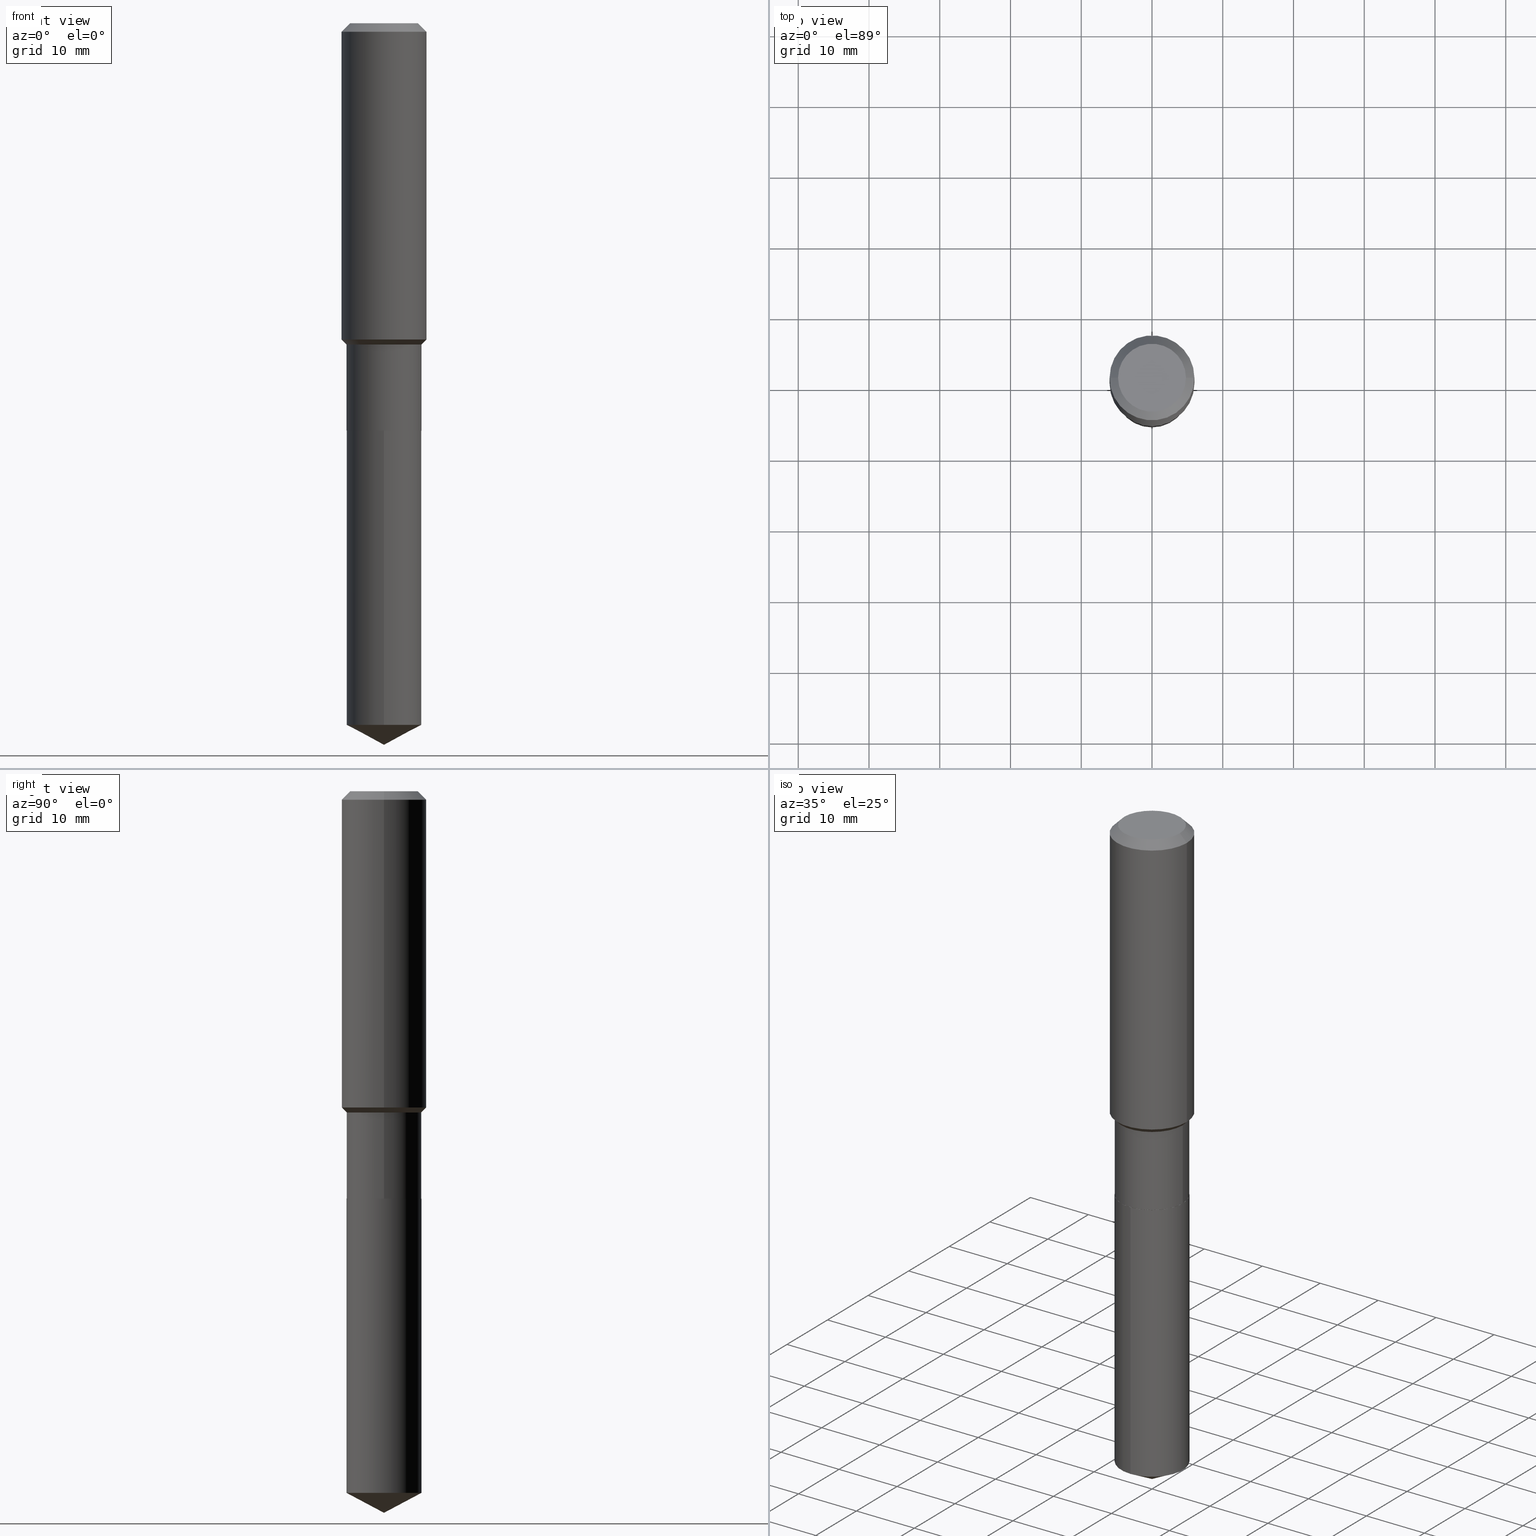
[diagram: canonical four-view strip — front | top / right | iso, engineering-drawing reading convention]
A machine part, canonical four-view strip (front | top / right | iso — engineering-drawing reading convention). The complete STEP part file that produces these views, byte-faithful:
ISO-10303-21;
HEADER;
FILE_DESCRIPTION (( 'STEP AP203' ),
    '1' );
FILE_NAME ('67676.STEP',
    '2024-04-25T09:06:03',
    ( '' ),
    ( '' ),
    'SwSTEP 2.0',
    'SolidWorks 2023',
    '' );
FILE_SCHEMA (( 'CONFIG_CONTROL_DESIGN' ));
ENDSEC;

DATA;
#1 = ORIENTED_EDGE ( 'NONE', *, *, #234, .T. ) ;
#2 = CARTESIAN_POINT ( 'NONE',  ( 0.000000000000000000, 0.000000000000000000, 0.000000000000000000 ) ) ;
#3 = DIRECTION ( 'NONE',  ( -2.445557312762825929E-29, 3.491354592386412889E-15, 1.000000000000000000 ) ) ;
#4 = CIRCLE ( 'NONE', #62, 0.1889600000000000168 ) ;
#5 = VECTOR ( 'NONE', #460, 39.37007874015748143 ) ;
#6 = DIRECTION ( 'NONE',  ( 1.000000000000000000, -6.982962677686266711E-15, 4.876176775795935793E-29 ) ) ;
#7 = DIRECTION ( 'NONE',  ( 0.000000000000000000, 0.000000000000000000, 1.000000000000000000 ) ) ;
#8 = FACE_OUTER_BOUND ( 'NONE', #79, .T. ) ;
#9 = ORIENTED_EDGE ( 'NONE', *, *, #287, .F. ) ;
#10 = ORIENTED_EDGE ( 'NONE', *, *, #470, .F. ) ;
#11 = EDGE_LOOP ( 'NONE', ( #244, #84, #227, #386 ) ) ;
#12 = EDGE_LOOP ( 'NONE', ( #419, #446, #306, #125 ) ) ;
#13 = DATE_AND_TIME ( #161, #199 ) ;
#14 = AXIS2_PLACEMENT_3D ( 'NONE', #176, #102, #420 ) ;
#15 = APPROVAL_PERSON_ORGANIZATION ( #450, #402, #49 ) ;
#16 = PRODUCT ( '67676', '67676', '', ( #336 ) ) ;
#17 = ADVANCED_FACE ( 'NONE', ( #479 ), #23, .T. ) ;
#18 = DIRECTION ( 'NONE',  ( -2.445557312762825929E-29, 3.491354592386412889E-15, 1.000000000000000000 ) ) ;
#19 = DIRECTION ( 'NONE',  ( -2.445557312762825929E-29, 3.491354592386412889E-15, 1.000000000000000000 ) ) ;
#20 = CIRCLE ( 'NONE', #231, 0.2086500000000000021 ) ;
#21 = CC_DESIGN_DATE_AND_TIME_ASSIGNMENT ( #142, #289, ( #406 ) ) ;
#22 = CARTESIAN_POINT ( 'NONE',  ( 9.549110806634494996E-29, -1.363318507336581100E-14, -3.904758827083833150 ) ) ;
#23 = CYLINDRICAL_SURFACE ( 'NONE', #121, 0.2086500000000000021 ) ;
#24 = LINE ( 'NONE', #320, #242 ) ;
#25 = EDGE_CURVE ( 'NONE', #193, #421, #473, .T. ) ;
#26 = CONICAL_SURFACE ( 'NONE', #283, 0.2086499999999999466, 0.7853981633974513876 ) ;
#27 = AXIS2_PLACEMENT_3D ( 'NONE', #183, #7, #251 ) ;
#28 = EDGE_CURVE ( 'NONE', #53, #150, #155, .T. ) ;
#29 = ADVANCED_FACE ( 'NONE', ( #319 ), #26, .T. ) ;
#30 = DIRECTION ( 'NONE',  ( -2.445468806185136597E-29, 3.491481338843145583E-15, 1.000000000000000000 ) ) ;
#31 = EDGE_CURVE ( 'NONE', #193, #268, #166, .T. ) ;
#32 = PERSON_AND_ORGANIZATION_ROLE ( 'creator' ) ;
#33 = AXIS2_PLACEMENT_3D ( 'NONE', #297, #299, #56 ) ;
#34 = LINE ( 'NONE', #139, #279 ) ;
#35 = CARTESIAN_POINT ( 'NONE',  ( 5.545345064905416332E-29, -7.917283083960716952E-15, -2.267600000000000282 ) ) ;
#36 = DIRECTION ( 'NONE',  ( 1.000000000000000000, -6.982962677686263555E-15, 0.000000000000000000 ) ) ;
#37 = MANIFOLD_SOLID_BREP ( 'Body-Move/Copy2[1]', #81 ) ;
#38 = CARTESIAN_POINT ( 'NONE',  ( 5.545345064905416332E-29, -7.917283083960716952E-15, -2.267600000000000282 ) ) ;
#39 = CARTESIAN_POINT ( 'NONE',  ( 0.2086499999999999466, -7.698716352149130505E-15, -1.787699999999999845 ) ) ;
#40 = CONICAL_SURFACE ( 'NONE', #462, 0.2081500000000000017, 0.7853981633975507526 ) ;
#41 = ORIENTED_EDGE ( 'NONE', *, *, #486, .F. ) ;
#42 = EDGE_LOOP ( 'NONE', ( #185, #95, #44, #374 ) ) ;
#43 = PERSON_AND_ORGANIZATION ( #332, #188 ) ;
#44 = ORIENTED_EDGE ( 'NONE', *, *, #249, .F. ) ;
#45 = ORIENTED_EDGE ( 'NONE', *, *, #200, .F. ) ;
#46 = PERSON_AND_ORGANIZATION_ROLE ( 'design_supplier' ) ;
#47 = CARTESIAN_POINT ( 'NONE',  ( 5.545345064905416332E-29, -7.917283083960716952E-15, -2.267600000000000282 ) ) ;
#48 = EDGE_LOOP ( 'NONE', ( #391, #91, #265, #438 ) ) ;
#49 = APPROVAL_ROLE ( '' ) ;
#50 = APPLICATION_CONTEXT ( 'configuration controlled 3d designs of mechanical parts and assemblies' ) ;
#51 = ADVANCED_BREP_SHAPE_REPRESENTATION ( '67676', ( #37, #360, #27 ), #480 ) ;
#52 = CARTESIAN_POINT ( 'NONE',  ( 5.545345064905416332E-29, -7.917283083960716952E-15, -2.267600000000000282 ) ) ;
#53 = VERTEX_POINT ( 'NONE', #278 ) ;
#54 = VECTOR ( 'NONE', #256, 39.37007874015748854 ) ;
#55 = ORIENTED_EDGE ( 'NONE', *, *, #440, .T. ) ;
#56 = DIRECTION ( 'NONE',  ( -1.000000000000000000, 6.982962677686266711E-15, 0.000000000000000000 ) ) ;
#57 = CARTESIAN_POINT ( 'NONE',  ( 5.545345064905416332E-29, -7.917283083960716952E-15, -2.267600000000000282 ) ) ;
#58 = CIRCLE ( 'NONE', #304, 0.1889600000000000168 ) ;
#59 = CONICAL_SURFACE ( 'NONE', #210, 74.04434902938353957, 1.082104136236486491 ) ;
#60 = EDGE_CURVE ( 'NONE', #65, #164, #97, .T. ) ;
#61 = EDGE_CURVE ( 'NONE', #268, #65, #181, .T. ) ;
#62 = AXIS2_PLACEMENT_3D ( 'NONE', #453, #138, #414 ) ;
#63 = CC_DESIGN_SECURITY_CLASSIFICATION ( #243, ( #273 ) ) ;
#64 = EDGE_CURVE ( 'NONE', #309, #65, #137, .T. ) ;
#65 = VERTEX_POINT ( 'NONE', #39 ) ;
#66 = DIRECTION ( 'NONE',  ( 1.000000000000000000, -6.982962677686266711E-15, 0.000000000000000000 ) ) ;
#67 = LENGTH_MEASURE_WITH_UNIT ( LENGTH_MEASURE( 0.02539999999999999897 ), #98 );
#68 = EDGE_CURVE ( 'NONE', #421, #193, #175, .T. ) ;
#69 = FACE_OUTER_BOUND ( 'NONE', #195, .T. ) ;
#70 = FACE_OUTER_BOUND ( 'NONE', #159, .T. ) ;
#71 = AXIS2_PLACEMENT_3D ( 'NONE', #115, #184, #189 ) ;
#72 = DIRECTION ( 'NONE',  ( -2.445557312762825929E-29, 3.491354592386412889E-15, 1.000000000000000000 ) ) ;
#73 = DIRECTION ( 'NONE',  ( -2.445468806185136597E-29, 3.491481338843145583E-15, 1.000000000000000000 ) ) ;
#74 = CARTESIAN_POINT ( 'NONE',  ( -1.456995162699183723E-15, -0.2086500000000079402, -2.267599999999999394 ) ) ;
#75 = ORIENTED_EDGE ( 'NONE', *, *, #25, .T. ) ;
#76 = DIRECTION ( 'NONE',  ( -2.445468806185136597E-29, 3.491481338843145583E-15, 1.000000000000000000 ) ) ;
#77 = CARTESIAN_POINT ( 'NONE',  ( 9.820223105830542316E-29, -1.402080745717669325E-14, -4.015699999999999825 ) ) ;
#78 = DIRECTION ( 'NONE',  ( -2.445468806185136597E-29, 3.491481338843145583E-15, 1.000000000000000000 ) ) ;
#79 = EDGE_LOOP ( 'NONE', ( #162, #466, #383, #343 ) ) ;
#80 = ORIENTED_EDGE ( 'NONE', *, *, #25, .F. ) ;
#81 = CLOSED_SHELL ( 'NONE', ( #17, #325, #465, #477, #132 ) ) ;
#82 = AXIS2_PLACEMENT_3D ( 'NONE', #2, #116, #6 ) ;
#83 = CC_DESIGN_APPROVAL ( #402, ( #273 ) ) ;
#84 = ORIENTED_EDGE ( 'NONE', *, *, #486, .T. ) ;
#85 = COORDINATED_UNIVERSAL_TIME_OFFSET ( 5, 0, .BEHIND. ) ;
#86 = APPLICATION_CONTEXT ( 'configuration controlled 3d designs of mechanical parts and assemblies' ) ;
#87 = DIRECTION ( 'NONE',  ( -2.445557312762825929E-29, 3.491354592386412889E-15, 1.000000000000000000 ) ) ;
#88 = ORIENTED_EDGE ( 'NONE', *, *, #106, .F. ) ;
#89 = ADVANCED_FACE ( 'NONE', ( #334 ), #140, .T. ) ;
#90 = ORIENTED_EDGE ( 'NONE', *, *, #312, .F. ) ;
#91 = ORIENTED_EDGE ( 'NONE', *, *, #68, .T. ) ;
#92 = EDGE_LOOP ( 'NONE', ( #313, #461 ) ) ;
#93 = VECTOR ( 'NONE', #113, 39.37007874015748143 ) ;
#94 = APPROVAL_PERSON_ORGANIZATION ( #43, #191, #410 ) ;
#95 = ORIENTED_EDGE ( 'NONE', *, *, #470, .T. ) ;
#96 = DIRECTION ( 'NONE',  ( 1.000000000000000000, -6.982962677686266711E-15, 0.000000000000000000 ) ) ;
#97 = LINE ( 'NONE', #439, #93 ) ;
#98 =( LENGTH_UNIT ( ) NAMED_UNIT ( * ) SI_UNIT ( $, .METRE. ) );
#99 = VECTOR ( 'NONE', #136, 39.37007874015748143 ) ;
#100 = CC_DESIGN_APPROVAL ( #191, ( #406 ) ) ;
#101 = ADVANCED_FACE ( 'NONE', ( #359 ), #250, .T. ) ;
#102 = DIRECTION ( 'NONE',  ( -2.445468806185136597E-29, 3.491481338843145583E-15, 1.000000000000000000 ) ) ;
#103 = VERTEX_POINT ( 'NONE', #416 ) ;
#104 = CIRCLE ( 'NONE', #157, 0.2361999999999999933 ) ;
#105 = CARTESIAN_POINT ( 'NONE',  ( -0.2361999999999999933, -1.476932286640498674E-15, -0.04724000000000028177 ) ) ;
#106 = EDGE_CURVE ( 'NONE', #309, #428, #24, .T. ) ;
#107 = LINE ( 'NONE', #74, #339 ) ;
#108 = CALENDAR_DATE ( 2024, 25, 4 ) ;
#109 = DIRECTION ( 'NONE',  ( 0.7071067811865453523, -7.319954787623248157E-15, -0.7071067811865496822 ) ) ;
#110 = DIRECTION ( 'NONE',  ( 1.000000000000000000, -6.982962677686267499E-15, 0.000000000000000000 ) ) ;
#111 = APPLICATION_PROTOCOL_DEFINITION ( 'international standard', 'config_control_design', 1994, #86 ) ;
#112 = CARTESIAN_POINT ( 'NONE',  ( 9.820628020622293086E-29, -1.402023263664611897E-14, -4.015699999999999825 ) ) ;
#113 = DIRECTION ( 'NONE',  ( 0.7071067811865496822, -2.468850131082279149E-15, 0.7071067811865453523 ) ) ;
#114 = AXIS2_PLACEMENT_3D ( 'NONE', #255, #376, #212 ) ;
#115 = CARTESIAN_POINT ( 'NONE',  ( 5.544122330502323530E-29, -7.915537343291296237E-15, -2.267100000000000115 ) ) ;
#116 = DIRECTION ( 'NONE',  ( -2.445468806185136597E-29, 3.491481338843145583E-15, 1.000000000000000000 ) ) ;
#117 = EDGE_CURVE ( 'NONE', #421, #128, #449, .T. ) ;
#118 = LINE ( 'NONE', #77, #411 ) ;
#119 = EDGE_LOOP ( 'NONE', ( #228, #322, #397 ) ) ;
#120 = DATE_AND_TIME ( #426, #122 ) ;
#121 = AXIS2_PLACEMENT_3D ( 'NONE', #482, #207, #205 ) ;
#122 = LOCAL_TIME ( 5, 6, 3.000000000000000000, #353 ) ;
#123 = ADVANCED_FACE ( 'NONE', ( #404 ), #356, .T. ) ;
#124 = EDGE_LOOP ( 'NONE', ( #154, #262, #394 ) ) ;
#125 = ORIENTED_EDGE ( 'NONE', *, *, #60, .F. ) ;
#126 = EDGE_LOOP ( 'NONE', ( #41, #381, #377, #390 ) ) ;
#127 = CARTESIAN_POINT ( 'NONE',  ( 0.1889600000000000168, -1.540873453589747738E-15, 3.855188123725863225E-18 ) ) ;
#128 = VERTEX_POINT ( 'NONE', #409 ) ;
#129 = DATE_TIME_ROLE ( 'classification_date' ) ;
#130 = DIRECTION ( 'NONE',  ( 1.000000000000000000, -6.982962677686265922E-15, 4.876176775795935793E-29 ) ) ;
#131 = CARTESIAN_POINT ( 'NONE',  ( -8.646136016369427519E-28, 1.234343851651521043E-13, 35.35437874015748605 ) ) ;
#132 = ADVANCED_FACE ( 'NONE', ( #70 ), #489, .F. ) ;
#133 = LOCAL_TIME ( 5, 6, 3.000000000000000000, #85 ) ;
#134 = DIRECTION ( 'NONE',  ( -2.445468806185136597E-29, 3.491481338843145583E-15, 1.000000000000000000 ) ) ;
#135 = PRODUCT_RELATED_PRODUCT_CATEGORY ( 'detail', '', ( #16 ) ) ;
#136 = DIRECTION ( 'NONE',  ( -2.445468806185136877E-29, 3.491481338843145188E-15, 1.000000000000000000 ) ) ;
#137 = CIRCLE ( 'NONE', #14, 0.2086499999999999466 ) ;
#138 = DIRECTION ( 'NONE',  ( -2.445468806185136597E-29, 3.491481338843145583E-15, 1.000000000000000000 ) ) ;
#139 = CARTESIAN_POINT ( 'NONE',  ( 0.2361999999999999933, -1.785387205520586782E-15, -0.04724000000000028177 ) ) ;
#140 = CYLINDRICAL_SURFACE ( 'NONE', #82, 0.2362000000000001043 ) ;
#141 = CARTESIAN_POINT ( 'NONE',  ( 5.545345064905416332E-29, -7.917283083960716952E-15, -2.267600000000000282 ) ) ;
#142 = DATE_AND_TIME ( #485, #463 ) ;
#143 = CARTESIAN_POINT ( 'NONE',  ( 1.482547418163544505E-15, 0.2086499999999864019, -3.904758827083833594 ) ) ;
#144 = DIRECTION ( 'NONE',  ( 2.438088387897960049E-29, -3.491481338843145188E-15, -1.000000000000000000 ) ) ;
#145 = APPLICATION_PROTOCOL_DEFINITION ( 'international standard', 'config_control_design', 1994, #50 ) ;
#146 = CYLINDRICAL_SURFACE ( 'NONE', #380, 0.2086499999999999744 ) ;
#147 = FACE_OUTER_BOUND ( 'NONE', #355, .T. ) ;
#148 = AXIS2_PLACEMENT_3D ( 'NONE', #293, #211, #177 ) ;
#149 = DIRECTION ( 'NONE',  ( -2.445468806185136597E-29, 3.491481338843145583E-15, 1.000000000000000000 ) ) ;
#150 = VERTEX_POINT ( 'NONE', #143 ) ;
#151 = DIRECTION ( 'NONE',  ( 1.000000000000000000, -6.982962677686267499E-15, 0.000000000000000000 ) ) ;
#152 = EDGE_CURVE ( 'NONE', #65, #309, #444, .T. ) ;
#153 = ORIENTED_EDGE ( 'NONE', *, *, #31, .F. ) ;
#154 = ORIENTED_EDGE ( 'NONE', *, *, #173, .F. ) ;
#155 = CIRCLE ( 'NONE', #213, 0.2086500000000000021 ) ;
#156 = CIRCLE ( 'NONE', #230, 0.2362000000000002153 ) ;
#157 = AXIS2_PLACEMENT_3D ( 'NONE', #260, #78, #294 ) ;
#158 = CARTESIAN_POINT ( 'NONE',  ( -0.2081500000000000017, -6.435639152301958385E-15, -2.267600000000000282 ) ) ;
#159 = EDGE_LOOP ( 'NONE', ( #469, #271 ) ) ;
#160 = ORIENTED_EDGE ( 'NONE', *, *, #234, .F. ) ;
#161 = CALENDAR_DATE ( 2024, 25, 4 ) ;
#162 = ORIENTED_EDGE ( 'NONE', *, *, #241, .F. ) ;
#163 = DIMENSIONAL_EXPONENTS ( 1.000000000000000000, 0.000000000000000000, 0.000000000000000000, 0.000000000000000000, 0.000000000000000000, 0.000000000000000000, 0.000000000000000000 ) ;
#164 = VERTEX_POINT ( 'NONE', #300 ) ;
#165 = APPROVAL_DATE_TIME ( #307, #305 ) ;
#166 = LINE ( 'NONE', #201, #196 ) ;
#167 = ORIENTED_EDGE ( 'NONE', *, *, #172, .T. ) ;
#168 = DESIGN_CONTEXT ( 'detailed design', #86, 'design' ) ;
#169 = DIRECTION ( 'NONE',  ( -6.982962677686265922E-15, -1.000000000000000000, 2.618593811324479633E-15 ) ) ;
#170 = DIRECTION ( 'NONE',  ( -2.445468806185136877E-29, 3.491481338843145188E-15, 1.000000000000000000 ) ) ;
#171 = DIRECTION ( 'NONE',  ( -6.982962677686265922E-15, -1.000000000000000000, 2.618593811324479633E-15 ) ) ;
#172 = EDGE_CURVE ( 'NONE', #268, #128, #272, .T. ) ;
#173 = EDGE_CURVE ( 'NONE', #349, #150, #298, .T. ) ;
#174 = CARTESIAN_POINT ( 'NONE',  ( -0.2086499999999999466, -5.596081848207143663E-15, -1.787699999999999845 ) ) ;
#175 = CIRCLE ( 'NONE', #252, 0.2081500000000000017 ) ;
#176 = CARTESIAN_POINT ( 'NONE',  ( 4.371764584817168227E-29, -6.241721189449890773E-15, -1.787699999999999845 ) ) ;
#177 = DIRECTION ( 'NONE',  ( 1.000000000000000000, -6.982962677686266711E-15, 4.876176775795935793E-29 ) ) ;
#178 = COORDINATED_UNIVERSAL_TIME_OFFSET ( 5, 0, .BEHIND. ) ;
#179 = CARTESIAN_POINT ( 'NONE',  ( -9.427742298522546243E-47, 1.346031739168365344E-32, 3.855188123715862256E-18 ) ) ;
#180 = DIRECTION ( 'NONE',  ( 6.982962677686265922E-15, 1.000000000000000000, -3.491354592386412889E-15 ) ) ;
#181 = LINE ( 'NONE', #459, #401 ) ;
#182 = FACE_OUTER_BOUND ( 'NONE', #126, .T. ) ;
#183 = CARTESIAN_POINT ( 'NONE',  ( 0.000000000000000000, 0.000000000000000000, 0.000000000000000000 ) ) ;
#184 = DIRECTION ( 'NONE',  ( -2.445468806185136597E-29, 3.491481338843145583E-15, 1.000000000000000000 ) ) ;
#185 = ORIENTED_EDGE ( 'NONE', *, *, #28, .T. ) ;
#186 = CARTESIAN_POINT ( 'NONE',  ( 4.371764584817168227E-29, -6.241721189449890773E-15, -1.787699999999999845 ) ) ;
#187 = AXIS2_PLACEMENT_3D ( 'NONE', #335, #3, #408 ) ;
#188 = ORGANIZATION ( 'UNSPECIFIED', 'UNSPECIFIED', '' ) ;
#189 = DIRECTION ( 'NONE',  ( 1.000000000000000000, -6.982962677686265922E-15, 0.000000000000000000 ) ) ;
#190 = EDGE_LOOP ( 'NONE', ( #10, #425, #431, #434 ) ) ;
#191 = APPROVAL ( #448, 'UNSPECIFIED' ) ;
#192 = CARTESIAN_POINT ( 'NONE',  ( 5.544122330502323530E-29, -7.915537343291296237E-15, -2.267100000000000115 ) ) ;
#193 = VERTEX_POINT ( 'NONE', #327 ) ;
#194 = PERSON_AND_ORGANIZATION_ROLE ( 'creator' ) ;
#195 = EDGE_LOOP ( 'NONE', ( #324, #1, #221, #45 ) ) ;
#196 = VECTOR ( 'NONE', #317, 39.37007874015748143 ) ;
#197 = AXIS2_PLACEMENT_3D ( 'NONE', #141, #483, #36 ) ;
#198 = ADVANCED_FACE ( 'NONE', ( #8 ), #146, .T. ) ;
#199 = LOCAL_TIME ( 5, 6, 3.000000000000000000, #302 ) ;
#200 = EDGE_CURVE ( 'NONE', #239, #275, #372, .T. ) ;
#201 = CARTESIAN_POINT ( 'NONE',  ( 0.2081500000000000017, -9.370786765321112099E-15, -2.267600000000000282 ) ) ;
#202 = ADVANCED_FACE ( 'NONE', ( #248 ), #40, .T. ) ;
#203 = PERSON_AND_ORGANIZATION ( #332, #188 ) ;
#204 = AXIS2_PLACEMENT_3D ( 'NONE', #35, #330, #180 ) ;
#205 = DIRECTION ( 'NONE',  ( -6.982962677686265922E-15, -1.000000000000000000, 3.927890716986719253E-15 ) ) ;
#206 = EDGE_CURVE ( 'NONE', #349, #53, #118, .T. ) ;
#207 = DIRECTION ( 'NONE',  ( -2.445557312762825929E-29, 3.491354592386412889E-15, 1.000000000000000000 ) ) ;
#208 = DIRECTION ( 'NONE',  ( -2.445468806185136597E-29, 3.491481338843145583E-15, 1.000000000000000000 ) ) ;
#209 = AXIS2_PLACEMENT_3D ( 'NONE', #447, #363, #456 ) ;
#210 = AXIS2_PLACEMENT_3D ( 'NONE', #131, #18, #232 ) ;
#211 = DIRECTION ( 'NONE',  ( -2.445468806185136597E-29, 3.491481338843145583E-15, 1.000000000000000000 ) ) ;
#212 = DIRECTION ( 'NONE',  ( -1.000000000000000000, 6.982962677686266711E-15, 0.000000000000000000 ) ) ;
#213 = AXIS2_PLACEMENT_3D ( 'NONE', #22, #19, #171 ) ;
#214 = CIRCLE ( 'NONE', #367, 0.2086500000000000021 ) ;
#215 = CARTESIAN_POINT ( 'NONE',  ( 5.545345064905416332E-29, -7.917283083960716952E-15, -2.267600000000000282 ) ) ;
#216 = CIRCLE ( 'NONE', #254, 0.2361999999999999933 ) ;
#217 = DIRECTION ( 'NONE',  ( -2.445557312762825929E-29, 3.491354592386412889E-15, 1.000000000000000000 ) ) ;
#218 = APPROVAL_STATUS ( 'not_yet_approved' ) ;
#219 = CARTESIAN_POINT ( 'NONE',  ( 9.549110806634494996E-29, -1.363318507336581100E-14, -3.904758827083833150 ) ) ;
#220 = FACE_OUTER_BOUND ( 'NONE', #119, .T. ) ;
#221 = ORIENTED_EDGE ( 'NONE', *, *, #346, .T. ) ;
#222 = CARTESIAN_POINT ( 'NONE',  ( -0.2086499999999999744, 1.482547418163448856E-15, -1.026335806581685820E-29 ) ) ;
#223 = DATE_AND_TIME ( #108, #284 ) ;
#224 = CC_DESIGN_DATE_AND_TIME_ASSIGNMENT ( #120, #129, ( #243 ) ) ;
#225 = AXIS2_PLACEMENT_3D ( 'NONE', #219, #87, #169 ) ;
#226 = DIRECTION ( 'NONE',  ( -2.445468806185136597E-29, 3.491481338843145583E-15, 1.000000000000000000 ) ) ;
#227 = ORIENTED_EDGE ( 'NONE', *, *, #346, .F. ) ;
#228 = ORIENTED_EDGE ( 'NONE', *, *, #206, .F. ) ;
#229 = PERSON_AND_ORGANIZATION ( #332, #188 ) ;
#230 = AXIS2_PLACEMENT_3D ( 'NONE', #407, #30, #66 ) ;
#231 = AXIS2_PLACEMENT_3D ( 'NONE', #192, #226, #342 ) ;
#232 = DIRECTION ( 'NONE',  ( -6.982962677686265922E-15, -1.000000000000000000, 3.541896320645560869E-15 ) ) ;
#233 = VERTEX_POINT ( 'NONE', #484 ) ;
#234 = EDGE_CURVE ( 'NONE', #488, #344, #34, .T. ) ;
#235 = FACE_OUTER_BOUND ( 'NONE', #474, .T. ) ;
#236 = CALENDAR_DATE ( 2024, 25, 4 ) ;
#237 = EDGE_CURVE ( 'NONE', #488, #239, #58, .T. ) ;
#238 = AXIS2_PLACEMENT_3D ( 'NONE', #57, #267, #130 ) ;
#239 = VERTEX_POINT ( 'NONE', #281 ) ;
#240 = CARTESIAN_POINT ( 'NONE',  ( -0.2081500000000000017, -6.438288379476068797E-15, -2.267600000000000282 ) ) ;
#241 = EDGE_CURVE ( 'NONE', #128, #309, #288, .T. ) ;
#242 = VECTOR ( 'NONE', #370, 39.37007874015748143 ) ;
#243 = SECURITY_CLASSIFICATION ( '', '', #266 ) ;
#244 = ORIENTED_EDGE ( 'NONE', *, *, #280, .T. ) ;
#245 = FACE_OUTER_BOUND ( 'NONE', #92, .T. ) ;
#246 = DIRECTION ( 'NONE',  ( -2.445557312762825929E-29, 3.491354592386412889E-15, 1.000000000000000000 ) ) ;
#247 = APPROVAL_DATE_TIME ( #223, #191 ) ;
#248 = FACE_OUTER_BOUND ( 'NONE', #318, .T. ) ;
#249 = EDGE_CURVE ( 'NONE', #103, #233, #214, .T. ) ;
#250 = CYLINDRICAL_SURFACE ( 'NONE', #314, 0.2086499999999999744 ) ;
#251 = DIRECTION ( 'NONE',  ( 1.000000000000000000, 0.000000000000000000, 0.000000000000000000 ) ) ;
#252 = AXIS2_PLACEMENT_3D ( 'NONE', #215, #73, #296 ) ;
#253 = DIRECTION ( 'NONE',  ( 1.000000000000000000, -6.982962677686266711E-15, 4.876176775795935793E-29 ) ) ;
#254 = AXIS2_PLACEMENT_3D ( 'NONE', #316, #437, #96 ) ;
#255 = CARTESIAN_POINT ( 'NONE',  ( 1.155239464041865506E-30, -1.649375784469511859E-16, -0.04724000000000028177 ) ) ;
#256 = DIRECTION ( 'NONE',  ( 6.273719981627764499E-15, 0.8829475928589295419, 0.4694715627858856433 ) ) ;
#257 = DIRECTION ( 'NONE',  ( -2.445468806185136597E-29, 3.491481338843145583E-15, 1.000000000000000000 ) ) ;
#258 = CARTESIAN_POINT ( 'NONE',  ( 0.2086500000000000021, -9.372532505990534391E-15, -2.267100000000000115 ) ) ;
#259 = ADVANCED_FACE ( 'NONE', ( #365 ), #348, .T. ) ;
#260 = CARTESIAN_POINT ( 'NONE',  ( 1.155239464041865506E-30, -1.649375784469511859E-16, -0.04724000000000028177 ) ) ;
#261 = CARTESIAN_POINT ( 'NONE',  ( 0.000000000000000000, 0.000000000000000000, 0.000000000000000000 ) ) ;
#262 = ORIENTED_EDGE ( 'NONE', *, *, #206, .T. ) ;
#263 = VECTOR ( 'NONE', #415, 39.37007874015748143 ) ;
#264 = CIRCLE ( 'NONE', #225, 0.2086500000000000021 ) ;
#265 = ORIENTED_EDGE ( 'NONE', *, *, #31, .T. ) ;
#266 = SECURITY_CLASSIFICATION_LEVEL ( 'unclassified' ) ;
#267 = DIRECTION ( 'NONE',  ( -2.438088387897960049E-29, 3.491481338843145188E-15, 1.000000000000000000 ) ) ;
#268 = VERTEX_POINT ( 'NONE', #258 ) ;
#269 = ADVANCED_FACE ( 'NONE', ( #69 ), #321, .T. ) ;
#270 = ORIENTED_EDGE ( 'NONE', *, *, #172, .F. ) ;
#271 = ORIENTED_EDGE ( 'NONE', *, *, #379, .T. ) ;
#272 = CIRCLE ( 'NONE', #71, 0.2086500000000000021 ) ;
#273 = PRODUCT_DEFINITION_FORMATION_WITH_SPECIFIED_SOURCE ( 'ANY', '', #16, .NOT_KNOWN. ) ;
#274 = DIRECTION ( 'NONE',  ( -2.445557312762825929E-29, 3.491354592386412889E-15, 1.000000000000000000 ) ) ;
#275 = VERTEX_POINT ( 'NONE', #105 ) ;
#276 = ADVANCED_FACE ( 'NONE', ( #245 ), #331, .F. ) ;
#277 = DIRECTION ( 'NONE',  ( -2.445468806185136597E-29, 3.491481338843145583E-15, 1.000000000000000000 ) ) ;
#278 = CARTESIAN_POINT ( 'NONE',  ( -1.456995162699143886E-15, -0.2086500000000136301, -3.904758827083832706 ) ) ;
#279 = VECTOR ( 'NONE', #109, 39.37007874015748143 ) ;
#280 = EDGE_CURVE ( 'NONE', #164, #428, #156, .T. ) ;
#281 = CARTESIAN_POINT ( 'NONE',  ( -0.1889600000000000168, 1.401969416799070942E-15, 3.855188123706346622E-18 ) ) ;
#282 = ADVANCED_FACE ( 'NONE', ( #182 ), #417, .T. ) ;
#283 = AXIS2_PLACEMENT_3D ( 'NONE', #478, #476, #396 ) ;
#284 = LOCAL_TIME ( 5, 6, 3.000000000000000000, #418 ) ;
#285 = DIRECTION ( 'NONE',  ( -1.000000000000000000, 6.982962677686265922E-15, -4.876176775795935793E-29 ) ) ;
#286 = PERSON_AND_ORGANIZATION ( #332, #188 ) ;
#287 = EDGE_CURVE ( 'NONE', #428, #164, #295, .T. ) ;
#288 = LINE ( 'NONE', #222, #99 ) ;
#289 = DATE_TIME_ROLE ( 'creation_date' ) ;
#290 = CARTESIAN_POINT ( 'NONE',  ( -0.2361999999999999933, 1.484438206022545019E-15, -0.04724000000000028177 ) ) ;
#291 = CARTESIAN_POINT ( 'NONE',  ( 0.2361999999999999933, -1.814313362916447440E-15, -0.04724000000000028177 ) ) ;
#292 = CARTESIAN_POINT ( 'NONE',  ( 4.371764584817168227E-29, -6.241721189449890773E-15, -1.787699999999999845 ) ) ;
#293 = CARTESIAN_POINT ( 'NONE',  ( 0.000000000000000000, 0.000000000000000000, 0.000000000000000000 ) ) ;
#294 = DIRECTION ( 'NONE',  ( 1.000000000000000000, -6.982962677686266711E-15, 0.000000000000000000 ) ) ;
#295 = CIRCLE ( 'NONE', #209, 0.2362000000000002153 ) ;
#296 = DIRECTION ( 'NONE',  ( 1.000000000000000000, -6.982962677686263555E-15, 0.000000000000000000 ) ) ;
#297 = CARTESIAN_POINT ( 'NONE',  ( 1.155239464041865506E-30, -1.649375784469511859E-16, -0.04724000000000028177 ) ) ;
#298 = LINE ( 'NONE', #112, #54 ) ;
#299 = DIRECTION ( 'NONE',  ( 2.445468806185136597E-29, -3.491481338843145583E-15, -1.000000000000000000 ) ) ;
#300 = CARTESIAN_POINT ( 'NONE',  ( 0.2362000000000002153, -7.794906663034259691E-15, -1.760149999999999881 ) ) ;
#301 = DIRECTION ( 'NONE',  ( -6.165590087286835240E-15, -0.8829475928589263223, 0.4694715627858919715 ) ) ;
#302 = COORDINATED_UNIVERSAL_TIME_OFFSET ( 5, 0, .BEHIND. ) ;
#303 = CARTESIAN_POINT ( 'NONE',  ( 0.2362000000000001043, -1.649375784469496920E-15, 1.151752954443000508E-29 ) ) ;
#304 = AXIS2_PLACEMENT_3D ( 'NONE', #179, #277, #371 ) ;
#305 = APPROVAL ( #398, 'UNSPECIFIED' ) ;
#306 = ORIENTED_EDGE ( 'NONE', *, *, #280, .F. ) ;
#307 = DATE_AND_TIME ( #236, #133 ) ;
#308 = PLANE ( 'NONE',  #238 ) ;
#309 = VERTEX_POINT ( 'NONE', #174 ) ;
#310 = PERSON_AND_ORGANIZATION ( #332, #188 ) ;
#311 = CARTESIAN_POINT ( 'NONE',  ( -0.2362000000000002153, -4.467228936699403616E-15, -1.760149999999999881 ) ) ;
#312 = EDGE_CURVE ( 'NONE', #239, #488, #4, .T. ) ;
#313 = ORIENTED_EDGE ( 'NONE', *, *, #312, .T. ) ;
#314 = AXIS2_PLACEMENT_3D ( 'NONE', #261, #76, #253 ) ;
#315 = CC_DESIGN_APPROVAL ( #305, ( #243 ) ) ;
#316 = CARTESIAN_POINT ( 'NONE',  ( 1.155239464041865506E-30, -1.649375784469511859E-16, -0.04724000000000028177 ) ) ;
#317 = DIRECTION ( 'NONE',  ( 0.7071067811866199593, -2.468850131083015945E-15, 0.7071067811864750752 ) ) ;
#318 = EDGE_LOOP ( 'NONE', ( #75, #385, #270, #153 ) ) ;
#319 = FACE_OUTER_BOUND ( 'NONE', #12, .T. ) ;
#320 = CARTESIAN_POINT ( 'NONE',  ( -0.2086499999999999466, -4.759173771286441720E-15, -1.787699999999999845 ) ) ;
#321 = CONICAL_SURFACE ( 'NONE', #114, 0.2361999999999999933, 0.7853981633974452814 ) ;
#322 = ORIENTED_EDGE ( 'NONE', *, *, #173, .T. ) ;
#323 = EDGE_CURVE ( 'NONE', #53, #103, #107, .T. ) ;
#324 = ORIENTED_EDGE ( 'NONE', *, *, #237, .F. ) ;
#325 = ADVANCED_FACE ( 'NONE', ( #220 ), #405, .T. ) ;
#326 = CLOSED_SHELL ( 'NONE', ( #202, #269, #89, #29, #101, #198, #123, #282, #333, #276, #475, #259 ) ) ;
#327 = CARTESIAN_POINT ( 'NONE',  ( 0.2081500000000000017, -9.370786765321112099E-15, -2.267600000000000282 ) ) ;
#328 = VECTOR ( 'NONE', #170, 39.37007874015748143 ) ;
#329 = DIRECTION ( 'NONE',  ( 1.000000000000000000, -6.982962677686266711E-15, 4.876176775795935793E-29 ) ) ;
#330 = DIRECTION ( 'NONE',  ( 2.445557312762825649E-29, -3.491354592386412889E-15, -1.000000000000000000 ) ) ;
#331 = PLANE ( 'NONE',  #454 ) ;
#332 = PERSON ( 'UNSPECIFIED', 'UNSPECIFIED', 'UNSPECIFIED', ('UNSPECIFIED'), ('UNSPECIFIED'), ('UNSPECIFIED') ) ;
#333 = ADVANCED_FACE ( 'NONE', ( #147 ), #378, .T. ) ;
#334 = FACE_OUTER_BOUND ( 'NONE', #11, .T. ) ;
#335 = CARTESIAN_POINT ( 'NONE',  ( -8.646136016369427519E-28, 1.234343851651521043E-13, 35.35437874015748605 ) ) ;
#336 = MECHANICAL_CONTEXT ( 'NONE', #50, 'mechanical' ) ;
#337 = CARTESIAN_POINT ( 'NONE',  ( 5.545345064905416332E-29, -7.917283083960716952E-15, -2.267600000000000282 ) ) ;
#338 = CC_DESIGN_PERSON_AND_ORGANIZATION_ASSIGNMENT ( #384, #46, ( #273 ) ) ;
#339 = VECTOR ( 'NONE', #246, 39.37007874015748143 ) ;
#340 = ORIENTED_EDGE ( 'NONE', *, *, #61, .F. ) ;
#341 = ORIENTED_EDGE ( 'NONE', *, *, #200, .T. ) ;
#342 = DIRECTION ( 'NONE',  ( 1.000000000000000000, -6.982962677686265922E-15, 0.000000000000000000 ) ) ;
#343 = ORIENTED_EDGE ( 'NONE', *, *, #64, .F. ) ;
#344 = VERTEX_POINT ( 'NONE', #291 ) ;
#345 = APPROVAL_ROLE ( '' ) ;
#346 = EDGE_CURVE ( 'NONE', #344, #275, #104, .T. ) ;
#347 = ORIENTED_EDGE ( 'NONE', *, *, #60, .T. ) ;
#348 = CONICAL_SURFACE ( 'NONE', #197, 0.2081500000000000017, 0.7853981633975507526 ) ;
#349 = VERTEX_POINT ( 'NONE', #451 ) ;
#350 = APPROVAL_DATE_TIME ( #13, #402 ) ;
#351 = VECTOR ( 'NONE', #464, 39.37007874015748143 ) ;
#352 = ORIENTED_EDGE ( 'NONE', *, *, #68, .F. ) ;
#353 = COORDINATED_UNIVERSAL_TIME_OFFSET ( 5, 0, .BEHIND. ) ;
#354 = EDGE_CURVE ( 'NONE', #128, #268, #20, .T. ) ;
#355 = EDGE_LOOP ( 'NONE', ( #160, #90, #341, #55 ) ) ;
#356 = CONICAL_SURFACE ( 'NONE', #361, 0.2086499999999999466, 0.7853981633974513876 ) ;
#357 = APPROVAL_PERSON_ORGANIZATION ( #310, #305, #345 ) ;
#358 = CARTESIAN_POINT ( 'NONE',  ( -0.2362000000000001043, 1.678301941865357380E-15, -1.161852468318209317E-29 ) ) ;
#359 = FACE_OUTER_BOUND ( 'NONE', #389, .T. ) ;
#360 = MANIFOLD_SOLID_BREP ( 'Body-Move/Copy2[2]', #326 ) ;
#361 = AXIS2_PLACEMENT_3D ( 'NONE', #186, #208, #110 ) ;
#362 = EDGE_CURVE ( 'NONE', #164, #344, #373, .T. ) ;
#363 = DIRECTION ( 'NONE',  ( -2.445468806185136597E-29, 3.491481338843145583E-15, 1.000000000000000000 ) ) ;
#364 =( CONVERSION_BASED_UNIT ( 'INCH', #67 ) LENGTH_UNIT ( ) NAMED_UNIT ( #163 ) );
#365 = FACE_OUTER_BOUND ( 'NONE', #48, .T. ) ;
#366 = PERSON_AND_ORGANIZATION ( #332, #188 ) ;
#367 = AXIS2_PLACEMENT_3D ( 'NONE', #38, #217, #443 ) ;
#368 = CARTESIAN_POINT ( 'NONE',  ( 0.000000000000000000, 0.000000000000000000, 0.000000000000000000 ) ) ;
#369 = AXIS2_PLACEMENT_3D ( 'NONE', #47, #72, #455 ) ;
#370 = DIRECTION ( 'NONE',  ( -0.7071067811865496822, 7.493145998870362049E-15, 0.7071067811865453523 ) ) ;
#371 = DIRECTION ( 'NONE',  ( 1.000000000000000000, -6.982962677686266711E-15, 4.876185090822587894E-29 ) ) ;
#372 = LINE ( 'NONE', #290, #263 ) ;
#373 = LINE ( 'NONE', #303, #5 ) ;
#374 = ORIENTED_EDGE ( 'NONE', *, *, #323, .F. ) ;
#375 = DIRECTION ( 'NONE',  ( -0.7071067811866199593, 7.493145998870616062E-15, 0.7071067811864750752 ) ) ;
#376 = DIRECTION ( 'NONE',  ( 2.445468806185136597E-29, -3.491481338843145583E-15, -1.000000000000000000 ) ) ;
#377 = ORIENTED_EDGE ( 'NONE', *, *, #362, .T. ) ;
#378 = CONICAL_SURFACE ( 'NONE', #33, 0.2361999999999999933, 0.7853981633974452814 ) ;
#379 = EDGE_CURVE ( 'NONE', #233, #103, #445, .T. ) ;
#380 = AXIS2_PLACEMENT_3D ( 'NONE', #368, #149, #329 ) ;
#381 = ORIENTED_EDGE ( 'NONE', *, *, #287, .T. ) ;
#382 = ORIENTED_EDGE ( 'NONE', *, *, #152, .F. ) ;
#383 = ORIENTED_EDGE ( 'NONE', *, *, #61, .T. ) ;
#384 = PERSON_AND_ORGANIZATION ( #332, #188 ) ;
#385 = ORIENTED_EDGE ( 'NONE', *, *, #117, .T. ) ;
#386 = ORIENTED_EDGE ( 'NONE', *, *, #362, .F. ) ;
#387 = PERSON_AND_ORGANIZATION_ROLE ( 'classification_officer' ) ;
#388 = DIRECTION ( 'NONE',  ( -6.982962677686265922E-15, -1.000000000000000000, 3.927890716986719253E-15 ) ) ;
#389 = EDGE_LOOP ( 'NONE', ( #167, #429, #382, #340 ) ) ;
#390 = ORIENTED_EDGE ( 'NONE', *, *, #440, .F. ) ;
#391 = ORIENTED_EDGE ( 'NONE', *, *, #117, .F. ) ;
#392 = FACE_OUTER_BOUND ( 'NONE', #124, .T. ) ;
#393 = CARTESIAN_POINT ( 'NONE',  ( 5.545345064905416332E-29, -7.917283083960716952E-15, -2.267600000000000282 ) ) ;
#394 = ORIENTED_EDGE ( 'NONE', *, *, #395, .F. ) ;
#395 = EDGE_CURVE ( 'NONE', #150, #53, #264, .T. ) ;
#396 = DIRECTION ( 'NONE',  ( 1.000000000000000000, -6.982962677686267499E-15, 0.000000000000000000 ) ) ;
#397 = ORIENTED_EDGE ( 'NONE', *, *, #28, .F. ) ;
#398 = APPROVAL_STATUS ( 'not_yet_approved' ) ;
#399 = LINE ( 'NONE', #472, #351 ) ;
#400 = AXIS2_PLACEMENT_3D ( 'NONE', #393, #134, #432 ) ;
#401 = VECTOR ( 'NONE', #412, 39.37007874015748143 ) ;
#402 = APPROVAL ( #218, 'UNSPECIFIED' ) ;
#403 = UNCERTAINTY_MEASURE_WITH_UNIT (LENGTH_MEASURE( 1.000000000000000082E-05 ), #364, 'distance_accuracy_value', 'NONE');
#404 = FACE_OUTER_BOUND ( 'NONE', #467, .T. ) ;
#405 = CONICAL_SURFACE ( 'NONE', #187, 74.04434902938353957, 1.082104136236486491 ) ;
#406 = PRODUCT_DEFINITION ( 'UNKNOWN', '', #273, #168 ) ;
#407 = CARTESIAN_POINT ( 'NONE',  ( 4.304391919206767645E-29, -6.145530878564761588E-15, -1.760149999999999881 ) ) ;
#408 = DIRECTION ( 'NONE',  ( -6.982962677686265922E-15, -1.000000000000000000, 3.541896320645560869E-15 ) ) ;
#409 = CARTESIAN_POINT ( 'NONE',  ( -0.2086500000000000021, -5.596081848207143663E-15, -2.267100000000000115 ) ) ;
#410 = APPROVAL_ROLE ( '' ) ;
#411 = VECTOR ( 'NONE', #301, 39.37007874015748143 ) ;
#412 = DIRECTION ( 'NONE',  ( -2.445468806185136877E-29, 3.491481338843145188E-15, 1.000000000000000000 ) ) ;
#413 = CC_DESIGN_PERSON_AND_ORGANIZATION_ASSIGNMENT ( #366, #32, ( #406 ) ) ;
#414 = DIRECTION ( 'NONE',  ( 1.000000000000000000, -6.982962677686266711E-15, 4.876185090822587894E-29 ) ) ;
#415 = DIRECTION ( 'NONE',  ( -0.7071067811865453523, 2.468850131082234184E-15, -0.7071067811865496822 ) ) ;
#416 = CARTESIAN_POINT ( 'NONE',  ( -1.456995162699183723E-15, -0.2086500000000079402, -2.267599999999999394 ) ) ;
#417 = CYLINDRICAL_SURFACE ( 'NONE', #148, 0.2362000000000001043 ) ;
#418 = COORDINATED_UNIVERSAL_TIME_OFFSET ( 5, 0, .BEHIND. ) ;
#419 = ORIENTED_EDGE ( 'NONE', *, *, #152, .T. ) ;
#420 = DIRECTION ( 'NONE',  ( 1.000000000000000000, -6.982962677686267499E-15, 0.000000000000000000 ) ) ;
#421 = VERTEX_POINT ( 'NONE', #158 ) ;
#422 = CC_DESIGN_PERSON_AND_ORGANIZATION_ASSIGNMENT ( #203, #194, ( #273 ) ) ;
#423 = ORIENTED_EDGE ( 'NONE', *, *, #64, .T. ) ;
#424 = AXIS2_PLACEMENT_3D ( 'NONE', #292, #257, #151 ) ;
#425 = ORIENTED_EDGE ( 'NONE', *, *, #395, .T. ) ;
#426 = CALENDAR_DATE ( 2024, 25, 4 ) ;
#427 = CYLINDRICAL_SURFACE ( 'NONE', #441, 0.2086500000000000021 ) ;
#428 = VERTEX_POINT ( 'NONE', #311 ) ;
#429 = ORIENTED_EDGE ( 'NONE', *, *, #241, .T. ) ;
#430 = PRODUCT_DEFINITION_SHAPE ( 'NONE', 'NONE',  #406 ) ;
#431 = ORIENTED_EDGE ( 'NONE', *, *, #323, .T. ) ;
#432 = DIRECTION ( 'NONE',  ( 1.000000000000000000, -6.982962677686263555E-15, 0.000000000000000000 ) ) ;
#433 = VECTOR ( 'NONE', #375, 39.37007874015748143 ) ;
#434 = ORIENTED_EDGE ( 'NONE', *, *, #379, .F. ) ;
#435 = CC_DESIGN_PERSON_AND_ORGANIZATION_ASSIGNMENT ( #286, #457, ( #16 ) ) ;
#436 = LINE ( 'NONE', #358, #328 ) ;
#437 = DIRECTION ( 'NONE',  ( -2.445468806185136597E-29, 3.491481338843145583E-15, 1.000000000000000000 ) ) ;
#438 = ORIENTED_EDGE ( 'NONE', *, *, #354, .F. ) ;
#439 = CARTESIAN_POINT ( 'NONE',  ( 0.2086499999999999466, -7.698716352149130505E-15, -1.787699999999999845 ) ) ;
#440 = EDGE_CURVE ( 'NONE', #275, #344, #216, .T. ) ;
#441 = AXIS2_PLACEMENT_3D ( 'NONE', #52, #274, #388 ) ;
#442 =( NAMED_UNIT ( * ) PLANE_ANGLE_UNIT ( ) SI_UNIT ( $, .RADIAN. ) );
#443 = DIRECTION ( 'NONE',  ( -6.982962677686265922E-15, -1.000000000000000000, 3.927890716986719253E-15 ) ) ;
#444 = CIRCLE ( 'NONE', #424, 0.2086499999999999466 ) ;
#445 = CIRCLE ( 'NONE', #369, 0.2086500000000000021 ) ;
#446 = ORIENTED_EDGE ( 'NONE', *, *, #106, .T. ) ;
#447 = CARTESIAN_POINT ( 'NONE',  ( 4.304391919206767645E-29, -6.145530878564761588E-15, -1.760149999999999881 ) ) ;
#448 = APPROVAL_STATUS ( 'not_yet_approved' ) ;
#449 = LINE ( 'NONE', #240, #433 ) ;
#450 = PERSON_AND_ORGANIZATION ( #332, #188 ) ;
#451 = CARTESIAN_POINT ( 'NONE',  ( 9.820624500861679653E-29, -1.402023263664611897E-14, -4.015699999999999825 ) ) ;
#452 = CC_DESIGN_PERSON_AND_ORGANIZATION_ASSIGNMENT ( #229, #387, ( #243 ) ) ;
#453 = CARTESIAN_POINT ( 'NONE',  ( -9.427742298522546243E-47, 1.346031739168365344E-32, 3.855188123715862256E-18 ) ) ;
#454 = AXIS2_PLACEMENT_3D ( 'NONE', #490, #144, #285 ) ;
#455 = DIRECTION ( 'NONE',  ( -6.982962677686265922E-15, -1.000000000000000000, 3.927890716986719253E-15 ) ) ;
#456 = DIRECTION ( 'NONE',  ( 1.000000000000000000, -6.982962677686266711E-15, 0.000000000000000000 ) ) ;
#457 = PERSON_AND_ORGANIZATION_ROLE ( 'design_owner' ) ;
#458 = DIRECTION ( 'NONE',  ( 1.000000000000000000, -6.982962677686263555E-15, 0.000000000000000000 ) ) ;
#459 = CARTESIAN_POINT ( 'NONE',  ( 0.2086499999999999744, -1.456995162699239338E-15, 1.017414284269821845E-29 ) ) ;
#460 = DIRECTION ( 'NONE',  ( -2.445468806185136877E-29, 3.491481338843145188E-15, 1.000000000000000000 ) ) ;
#461 = ORIENTED_EDGE ( 'NONE', *, *, #237, .T. ) ;
#462 = AXIS2_PLACEMENT_3D ( 'NONE', #337, #487, #458 ) ;
#463 = LOCAL_TIME ( 5, 6, 3.000000000000000000, #178 ) ;
#464 = DIRECTION ( 'NONE',  ( -2.445557312762825929E-29, 3.491354592386412889E-15, 1.000000000000000000 ) ) ;
#465 = ADVANCED_FACE ( 'NONE', ( #392 ), #59, .T. ) ;
#466 = ORIENTED_EDGE ( 'NONE', *, *, #354, .T. ) ;
#467 = EDGE_LOOP ( 'NONE', ( #88, #423, #347, #9 ) ) ;
#468 = FACE_OUTER_BOUND ( 'NONE', #190, .T. ) ;
#469 = ORIENTED_EDGE ( 'NONE', *, *, #249, .T. ) ;
#470 = EDGE_CURVE ( 'NONE', #150, #233, #399, .T. ) ;
#471 = SHAPE_DEFINITION_REPRESENTATION ( #430, #51 ) ;
#472 = CARTESIAN_POINT ( 'NONE',  ( 1.482547418163504470E-15, 0.2086499999999920918, -2.267600000000001170 ) ) ;
#473 = CIRCLE ( 'NONE', #400, 0.2081500000000000017 ) ;
#474 = EDGE_LOOP ( 'NONE', ( #80, #352 ) ) ;
#475 = ADVANCED_FACE ( 'NONE', ( #235 ), #308, .F. ) ;
#476 = DIRECTION ( 'NONE',  ( -2.445468806185136597E-29, 3.491481338843145583E-15, 1.000000000000000000 ) ) ;
#477 = ADVANCED_FACE ( 'NONE', ( #468 ), #427, .T. ) ;
#478 = CARTESIAN_POINT ( 'NONE',  ( 4.371764584817168227E-29, -6.241721189449890773E-15, -1.787699999999999845 ) ) ;
#479 = FACE_OUTER_BOUND ( 'NONE', #42, .T. ) ;
#480 =( GEOMETRIC_REPRESENTATION_CONTEXT ( 3 ) GLOBAL_UNCERTAINTY_ASSIGNED_CONTEXT ( ( #403 ) ) GLOBAL_UNIT_ASSIGNED_CONTEXT ( ( #364, #442, #481 ) ) REPRESENTATION_CONTEXT ( 'NONE', 'WORKASPACE' ) );
#481 =( NAMED_UNIT ( * ) SI_UNIT ( $, .STERADIAN. ) SOLID_ANGLE_UNIT ( ) );
#482 = CARTESIAN_POINT ( 'NONE',  ( 5.545345064905416332E-29, -7.917283083960716952E-15, -2.267600000000000282 ) ) ;
#483 = DIRECTION ( 'NONE',  ( -2.445468806185136597E-29, 3.491481338843145583E-15, 1.000000000000000000 ) ) ;
#484 = CARTESIAN_POINT ( 'NONE',  ( 1.482547418163544702E-15, 0.2086499999999920918, -2.267600000000001170 ) ) ;
#485 = CALENDAR_DATE ( 2024, 25, 4 ) ;
#486 = EDGE_CURVE ( 'NONE', #428, #275, #436, .T. ) ;
#487 = DIRECTION ( 'NONE',  ( -2.445468806185136597E-29, 3.491481338843145583E-15, 1.000000000000000000 ) ) ;
#488 = VERTEX_POINT ( 'NONE', #127 ) ;
#489 = PLANE ( 'NONE',  #204 ) ;
#490 = CARTESIAN_POINT ( 'NONE',  ( -4.713871149261273121E-47, 6.730158695841826722E-33, 1.927594061857931128E-18 ) ) ;
ENDSEC;
END-ISO-10303-21;
